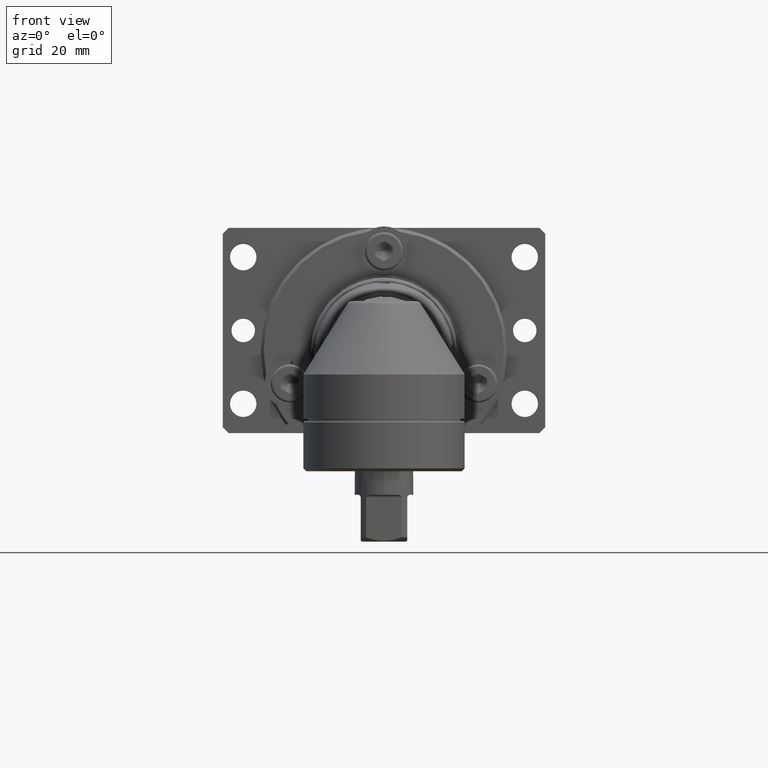
[diagram: clean part render]
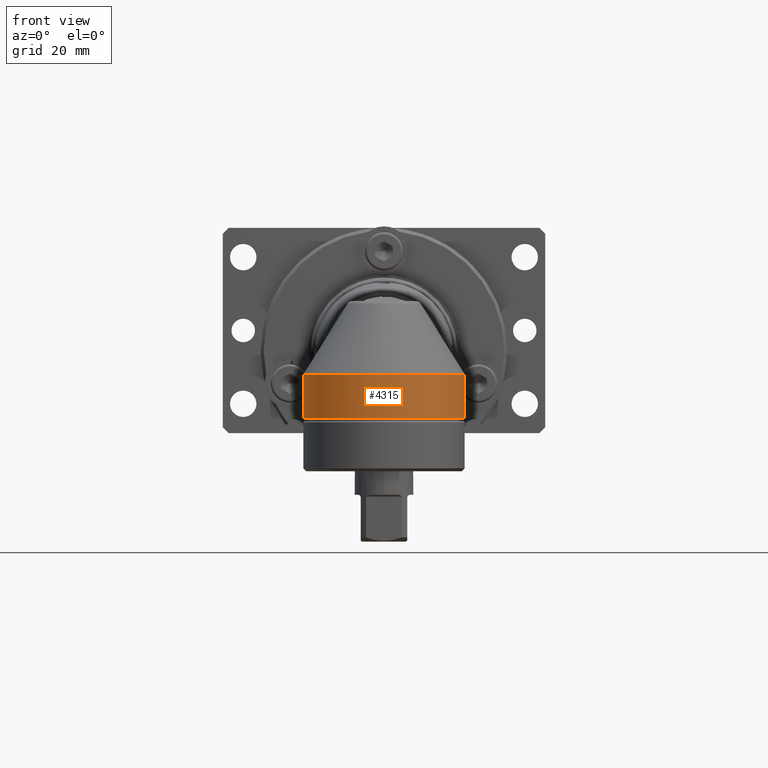
[diagram: same view with one face highlighted and labeled with its STEP entity id]
A machine part, front view. The second image highlights one B-rep face of the part: STEP entity #4315.
In plain terms, the highlighted cylindrical surface (bore or boss wall) has radius 27.5 mm, axis along (-0, 0, 1).
Its self-contained STEP definition (entity closure, byte-faithful):
#75=B_SPLINE_CURVE_WITH_KNOTS('',3,(#6843,#6844,#6845,#6846,#6847,#6848,
#6849,#6850,#6851,#6852,#6853,#6854,#6855,#6856,#6857,#6858,#6859,#6860,
#6861,#6862,#6863,#6864,#6865,#6866,#6867,#6868,#6869,#6870,#6871,#6872,
#6873,#6874,#6875,#6876,#6877,#6878,#6879,#6880,#6881,#6882,#6883,#6884,
#6885,#6886,#6887,#6888,#6889,#6890,#6891,#6892,#6893,#6894,#6895,#6896,
#6897,#6898,#6899,#6900,#6901,#6902,#6903,#6904,#6905,#6906,#6907,#6908,
#6909,#6910,#6911,#6912,#6913,#6914,#6915,#6916,#6917,#6918,#6919,#6920,
#6921,#6922,#6923,#6924,#6925,#6926,#6927,#6928,#6929,#6930,#6931,#6932,
#6933,#6934,#6935,#6936,#6937,#6938,#6939,#6940,#6941,#6942,#6943,#6944,
#6945,#6946,#6947,#6948,#6949,#6950,#6951,#6952,#6953,#6954,#6955,#6956,
#6957,#6958,#6959,#6960,#6961,#6962,#6963,#6964,#6965,#6966,#6967,#6968,
#6969),.UNSPECIFIED.,.F.,.F.,(4,3,3,3,3,3,3,3,3,3,3,3,3,3,3,3,3,3,3,3,3,
3,3,3,3,3,3,3,3,3,3,3,3,3,3,3,3,3,3,3,3,3,4),(-17.7070466256511,-17.5083488056441,
-17.3074736384562,-17.1887804634518,-17.0206010733423,-16.8240094232452,
-16.6345285269316,-16.4456815855126,-16.2596911502836,-16.2342344729538,
-16.1095041241357,-15.956338027395,-15.8073537070071,-15.6615047238209,
-15.5204249801509,-15.4550712867644,-15.2654648976194,-15.1974131817301,
-15.025334392355,-14.8613863528346,-14.741723008591,-14.5893002601389,-14.4303002306914,
-14.285862882406,-14.1153457681852,-14.0654097341612,-13.9204599866207,
-13.7699762363787,-13.6162620692377,-13.4583788014931,-13.4041479747186,
-13.3740911629389,-13.2071045468737,-13.03707144476,-12.863725955237,-12.6895672222733,
-12.5159265416098,-12.4629779472434,-12.4038385349106,-12.2233154720074,
-12.0471031034886,-11.8773444195522,-11.7763613678245),.UNSPECIFIED.);
#85=B_SPLINE_CURVE_WITH_KNOTS('',3,(#7140,#7141,#7142,#7143,#7144,#7145,
#7146,#7147),.UNSPECIFIED.,.F.,.F.,(4,2,2,4),(0.540907616312368,0.618847721981113,
0.742696162388718,0.878854937900262),.UNSPECIFIED.);
#93=B_SPLINE_CURVE_WITH_KNOTS('',3,(#7238,#7239,#7240,#7241,#7242,#7243,
#7244,#7245),.UNSPECIFIED.,.F.,.F.,(4,2,2,4),(0.,0.122759880665648,0.219472622103628,
0.258683667133576),.UNSPECIFIED.);
#185=LINE('',#7464,#394);
#394=VECTOR('',#5382,27.5);
#596=CYLINDRICAL_SURFACE('',#4643,27.5);
#760=FACE_OUTER_BOUND('',#1017,.T.);
#1017=EDGE_LOOP('',(#2993,#2994,#2995,#2996,#2997,#2998,#2999,#3000,#3001));
#1320=CIRCLE('',#4619,27.5);
#1321=CIRCLE('',#4620,27.5);
#1334=CIRCLE('',#4641,27.5);
#1335=CIRCLE('',#4642,27.5);
#1682=VERTEX_POINT('',#6813);
#1685=VERTEX_POINT('',#6834);
#1698=VERTEX_POINT('',#7139);
#1704=VERTEX_POINT('',#7237);
#1708=VERTEX_POINT('',#7420);
#1720=VERTEX_POINT('',#7459);
#1721=VERTEX_POINT('',#7460);
#2159=EDGE_CURVE('',#1685,#1682,#75,.T.);
#2176=EDGE_CURVE('',#1682,#1698,#85,.T.);
#2184=EDGE_CURVE('',#1704,#1685,#93,.T.);
#2193=EDGE_CURVE('',#1698,#1708,#1320,.T.);
#2194=EDGE_CURVE('',#1708,#1704,#1321,.T.);
#2212=EDGE_CURVE('',#1720,#1721,#1334,.T.);
#2213=EDGE_CURVE('',#1721,#1720,#1335,.T.);
#2214=EDGE_CURVE('',#1708,#1721,#185,.T.);
#2993=ORIENTED_EDGE('',*,*,#2159,.F.);
#2994=ORIENTED_EDGE('',*,*,#2184,.F.);
#2995=ORIENTED_EDGE('',*,*,#2194,.F.);
#2996=ORIENTED_EDGE('',*,*,#2214,.T.);
#2997=ORIENTED_EDGE('',*,*,#2213,.T.);
#2998=ORIENTED_EDGE('',*,*,#2212,.T.);
#2999=ORIENTED_EDGE('',*,*,#2214,.F.);
#3000=ORIENTED_EDGE('',*,*,#2193,.F.);
#3001=ORIENTED_EDGE('',*,*,#2176,.F.);
#4315=ADVANCED_FACE('',(#760),#596,.T.);
#4619=AXIS2_PLACEMENT_3D('',#7421,#5327,#5328);
#4620=AXIS2_PLACEMENT_3D('',#7422,#5329,#5330);
#4641=AXIS2_PLACEMENT_3D('',#7461,#5376,#5377);
#4642=AXIS2_PLACEMENT_3D('',#7462,#5378,#5379);
#4643=AXIS2_PLACEMENT_3D('',#7463,#5380,#5381);
#5327=DIRECTION('center_axis',(-2.51278438236415E-15,2.47358770109276E-30,
1.));
#5328=DIRECTION('ref_axis',(1.,-6.70462140602243E-16,2.51278438236415E-15));
#5329=DIRECTION('center_axis',(-2.51278438236415E-15,2.47358770109276E-30,
1.));
#5330=DIRECTION('ref_axis',(1.,-6.70462140602243E-16,2.51278438236415E-15));
#5376=DIRECTION('center_axis',(-2.51278438236415E-15,2.47358770109276E-30,
1.));
#5377=DIRECTION('ref_axis',(1.,-6.70462140602243E-16,2.51278438236415E-15));
#5378=DIRECTION('center_axis',(-2.51278438236415E-15,2.47358770109276E-30,
1.));
#5379=DIRECTION('ref_axis',(1.,-6.70462140602243E-16,2.51278438236415E-15));
#5380=DIRECTION('center_axis',(-2.51278438236415E-15,2.47358770109276E-30,
1.));
#5381=DIRECTION('ref_axis',(-1.,6.70462140602243E-16,-2.39031970244941E-15));
#5382=DIRECTION('',(2.51278438236415E-15,-2.47358770109276E-30,-1.));
#6813=CARTESIAN_POINT('',(-18.6740811436851,20.1873399297446,-6.97886737500413));
#6834=CARTESIAN_POINT('',(18.6740811436852,20.1873399297446,-6.97886737500405));
#6843=CARTESIAN_POINT('Ctrl Pts',(18.6738993673056,20.1871433585356,-6.97886732407488));
#6844=CARTESIAN_POINT('Ctrl Pts',(18.5014209593043,20.3464834740246,-7.58404983375807));
#6845=CARTESIAN_POINT('Ctrl Pts',(18.3079922814113,20.5210470190249,-8.17575001482381));
#6846=CARTESIAN_POINT('Ctrl Pts',(18.0948997176659,20.7070967063927,-8.75329315115982));
#6847=CARTESIAN_POINT('Ctrl Pts',(17.8794720679447,20.8951851416556,-9.33716505305381));
#6848=CARTESIAN_POINT('Ctrl Pts',(17.6439474324403,21.0950130551829,-9.90656799146456));
#6849=CARTESIAN_POINT('Ctrl Pts',(17.3896351246941,21.3027486792729,-10.4607647924705));
#6850=CARTESIAN_POINT('Ctrl Pts',(17.2393669971218,21.4254955629715,-10.788228753345));
#6851=CARTESIAN_POINT('Ctrl Pts',(17.0825389452229,21.5510038918792,-11.1103828922202));
#6852=CARTESIAN_POINT('Ctrl Pts',(16.9194176756991,21.678487368431,-11.4270685424822));
#6853=CARTESIAN_POINT('Ctrl Pts',(16.6882869841373,21.859121961235,-11.8757885258808));
#6854=CARTESIAN_POINT('Ctrl Pts',(16.4441958242729,22.043976737694,-12.3141581605075));
#6855=CARTESIAN_POINT('Ctrl Pts',(16.1879122149136,22.2307587837772,-12.7416463194571));
#6856=CARTESIAN_POINT('Ctrl Pts',(15.8883320010479,22.4490958262894,-13.2413544139516));
#6857=CARTESIAN_POINT('Ctrl Pts',(15.5720915205572,22.6700651611318,-13.7261926034371));
#6858=CARTESIAN_POINT('Ctrl Pts',(15.2395018917405,22.8914077791364,-14.1953214857016));
#6859=CARTESIAN_POINT('Ctrl Pts',(14.9189420869794,23.1047443965928,-14.6474818956383));
#6860=CARTESIAN_POINT('Ctrl Pts',(14.5831949378234,23.31842697133,-15.0850489301041));
#6861=CARTESIAN_POINT('Ctrl Pts',(14.2325692891678,23.5304301901844,-15.5073147832694));
#6862=CARTESIAN_POINT('Ctrl Pts',(13.8831167447695,23.7417241001803,-15.928167842271));
#6863=CARTESIAN_POINT('Ctrl Pts',(13.5188856205203,23.9513491399432,-16.3338217955149));
#6864=CARTESIAN_POINT('Ctrl Pts',(13.1402050296035,24.1573088785022,-16.7236211009536));
#6865=CARTESIAN_POINT('Ctrl Pts',(12.7672523760514,24.3601532620354,-17.1075242869189));
#6866=CARTESIAN_POINT('Ctrl Pts',(12.3802848085114,24.5594417424631,-17.4760488170435));
#6867=CARTESIAN_POINT('Ctrl Pts',(11.9796299988316,24.7532856633777,-17.8286133695242));
#6868=CARTESIAN_POINT('Ctrl Pts',(11.9247920164478,24.7798172543221,-17.8768691953648));
#6869=CARTESIAN_POINT('Ctrl Pts',(11.8696976323903,24.8062468863106,-17.9248261026772));
#6870=CARTESIAN_POINT('Ctrl Pts',(11.8143476938463,24.8325697545294,-17.972482667844));
#6871=CARTESIAN_POINT('Ctrl Pts',(11.5431490196355,24.9615441879284,-18.2059860398556));
#6872=CARTESIAN_POINT('Ctrl Pts',(11.2659551435318,25.0878899944459,-18.4319751556936));
#6873=CARTESIAN_POINT('Ctrl Pts',(10.9827743512004,25.211098784702,-18.650360873184));
#6874=CARTESIAN_POINT('Ctrl Pts',(10.6350346307204,25.3623964413389,-18.9185336815575));
#6875=CARTESIAN_POINT('Ctrl Pts',(10.2782681219194,25.5089644836691,-19.1752420652595));
#6876=CARTESIAN_POINT('Ctrl Pts',(9.91308838406619,25.6499183295533,-19.4196771788285));
#6877=CARTESIAN_POINT('Ctrl Pts',(9.5578788682451,25.7870238207943,-19.657438668146));
#6878=CARTESIAN_POINT('Ctrl Pts',(9.19470869469556,25.9188178812286,-19.8835881972567));
#6879=CARTESIAN_POINT('Ctrl Pts',(8.82411515684594,26.0444702602919,-20.0973443058206));
#6880=CARTESIAN_POINT('Ctrl Pts',(8.46132066592222,26.1674783169357,-20.3066019713435));
#6881=CARTESIAN_POINT('Ctrl Pts',(8.0914115195883,26.2846008106423,-20.5039826244833));
#6882=CARTESIAN_POINT('Ctrl Pts',(7.71487246532203,26.3950377938249,-20.6887130544377));
#6883=CARTESIAN_POINT('Ctrl Pts',(7.35064618072883,26.501863504493,-20.8674028274938));
#6884=CARTESIAN_POINT('Ctrl Pts',(6.9802160970118,26.6024340090107,-21.0342562969501));
#6885=CARTESIAN_POINT('Ctrl Pts',(6.60400881085647,26.6960014508204,-21.1885330971309));
#6886=CARTESIAN_POINT('Ctrl Pts',(6.42973477980414,26.7393455748168,-21.2600001868306));
#6887=CARTESIAN_POINT('Ctrl Pts',(6.25422087660888,26.7811865449642,-21.3287678479177));
#6888=CARTESIAN_POINT('Ctrl Pts',(6.07750892903364,26.8214479987318,-21.3947592697033));
#6889=CARTESIAN_POINT('Ctrl Pts',(5.56482613235803,26.9382559169231,-21.5862158584734));
#6890=CARTESIAN_POINT('Ctrl Pts',(5.0429009958044,27.0415765094225,-21.754632771118));
#6891=CARTESIAN_POINT('Ctrl Pts',(4.51317802595022,27.1295855761854,-21.8979892511627));
#6892=CARTESIAN_POINT('Ctrl Pts',(4.32305491244592,27.161172950609,-21.9494413910135));
#6893=CARTESIAN_POINT('Ctrl Pts',(4.13192777013606,27.1907878879291,-21.9976653041597));
#6894=CARTESIAN_POINT('Ctrl Pts',(3.93986508143168,27.2183460116886,-22.042567714563));
#6895=CARTESIAN_POINT('Ctrl Pts',(3.45420627732208,27.2880307876271,-22.1561100745354));
#6896=CARTESIAN_POINT('Ctrl Pts',(2.96256234733845,27.3445634850245,-22.2484131728501));
#6897=CARTESIAN_POINT('Ctrl Pts',(2.46730939951955,27.3879498101531,-22.3193315336054));
#6898=CARTESIAN_POINT('Ctrl Pts',(1.99545723135629,27.4292861245976,-22.3868989906641));
#6899=CARTESIAN_POINT('Ctrl Pts',(1.52032942768168,27.4586885078817,-22.4350541088026));
#6900=CARTESIAN_POINT('Ctrl Pts',(1.04401928000019,27.4761752124251,-22.4636945683793));
#6901=CARTESIAN_POINT('Ctrl Pts',(0.696367271867174,27.4889385095746,-22.4845988328258));
#6902=CARTESIAN_POINT('Ctrl Pts',(0.348086276149784,27.4953541607312,-22.4951074199627));
#6903=CARTESIAN_POINT('Ctrl Pts',(1.32385450557493E-6,27.4954365485193,
-22.4951922588058));
#6904=CARTESIAN_POINT('Ctrl Pts',(-0.443376432792995,27.495541491041,-22.4953003233909));
#6905=CARTESIAN_POINT('Ctrl Pts',(-0.887068959033633,27.4853705425256,-22.478379513719));
#6906=CARTESIAN_POINT('Ctrl Pts',(-1.32936936106625,27.4648829317254,-22.4445507745771));
#6907=CARTESIAN_POINT('Ctrl Pts',(-1.79075572013687,27.4435112483407,-22.4092622722089));
#6908=CARTESIAN_POINT('Ctrl Pts',(-2.2506265539675,27.4109140435223,-22.3555760726007));
#6909=CARTESIAN_POINT('Ctrl Pts',(-2.70709498352617,27.3670606393607,-22.2836547616394));
#6910=CARTESIAN_POINT('Ctrl Pts',(-3.12175584724136,27.327223732208,-22.2183206640511));
#6911=CARTESIAN_POINT('Ctrl Pts',(-3.5336099051889,27.2780987367766,-22.1379397175458));
#6912=CARTESIAN_POINT('Ctrl Pts',(-3.94127945464563,27.2196652557232,-22.0426401928269));
#6913=CARTESIAN_POINT('Ctrl Pts',(-4.4225582648305,27.1506809612774,-21.9301332814595));
#6914=CARTESIAN_POINT('Ctrl Pts',(-4.89800458351816,27.0687240008695,-21.796835216489));
#6915=CARTESIAN_POINT('Ctrl Pts',(-5.36661870257865,26.9751080741987,-21.6442738545452));
#6916=CARTESIAN_POINT('Ctrl Pts',(-5.5038526142623,26.9476925967506,-21.5995961728028));
#6917=CARTESIAN_POINT('Ctrl Pts',(-5.64050089264319,26.9192771320238,-21.5532663168453));
#6918=CARTESIAN_POINT('Ctrl Pts',(-5.77653912085259,26.8898943946219,-21.5053222754314));
#6919=CARTESIAN_POINT('Ctrl Pts',(-6.17141843436287,26.804604874705,-21.3661547016575));
#6920=CARTESIAN_POINT('Ctrl Pts',(-6.56055909006937,26.711296013416,-21.2130653029475));
#6921=CARTESIAN_POINT('Ctrl Pts',(-6.94348224711023,26.610809367964,-21.0468995142772));
#6922=CARTESIAN_POINT('Ctrl Pts',(-7.34102493830997,26.5064862662447,-20.8743897206053));
#6923=CARTESIAN_POINT('Ctrl Pts',(-7.73186672776648,26.3944266689725,-20.6877859440835));
#6924=CARTESIAN_POINT('Ctrl Pts',(-8.11546476390733,26.2755423958539,-20.487986697393));
#6925=CARTESIAN_POINT('Ctrl Pts',(-8.50729745379899,26.1541060480808,-20.2838983838638));
#6926=CARTESIAN_POINT('Ctrl Pts',(-8.89157251773448,26.0255485517625,-20.0660417530365));
#6927=CARTESIAN_POINT('Ctrl Pts',(-9.26769739762036,25.8908150420809,-19.8353281849122));
#6928=CARTESIAN_POINT('Ctrl Pts',(-9.65402369545603,25.7524272332088,-19.5983571058893));
#6929=CARTESIAN_POINT('Ctrl Pts',(-10.0317522816153,25.6075234705562,-19.3478219456796));
#6930=CARTESIAN_POINT('Ctrl Pts',(-10.400218417884,25.457105397968,-19.0846657682557));
#6931=CARTESIAN_POINT('Ctrl Pts',(-10.5267816914574,25.4054387675847,-18.9942750810323));
#6932=CARTESIAN_POINT('Ctrl Pts',(-10.6522519190115,25.3531213773259,-18.9023949669353));
#6933=CARTESIAN_POINT('Ctrl Pts',(-10.7766013765854,25.3001933624204,-18.8090625730331));
#6934=CARTESIAN_POINT('Ctrl Pts',(-10.8455206327264,25.2708586191294,-18.7573341675612));
#6935=CARTESIAN_POINT('Ctrl Pts',(-10.9141015676598,25.2413337506035,-18.705160257716));
#6936=CARTESIAN_POINT('Ctrl Pts',(-10.98233755221,25.2116262145331,-18.6525480489572));
#6937=CARTESIAN_POINT('Ctrl Pts',(-11.3614361817459,25.0465800693729,-18.3602504237554));
#6938=CARTESIAN_POINT('Ctrl Pts',(-11.7298857610871,24.875893632249,-18.0544211117435));
#6939=CARTESIAN_POINT('Ctrl Pts',(-12.0873613609905,24.700934467393,-17.7355348052011));
#6940=CARTESIAN_POINT('Ctrl Pts',(-12.4513587076866,24.522783366157,-17.4108307708263));
#6941=CARTESIAN_POINT('Ctrl Pts',(-12.8039777264812,24.340202774314,-17.0725890390239));
#6942=CARTESIAN_POINT('Ctrl Pts',(-13.1449017927998,24.154658803067,-16.7213522111756));
#6943=CARTESIAN_POINT('Ctrl Pts',(-13.49246734581,23.9655002796734,-16.3632729953932));
#6944=CARTESIAN_POINT('Ctrl Pts',(-13.8278775681701,23.7732624469401,-15.9916875244339));
#6945=CARTESIAN_POINT('Ctrl Pts',(-14.1508285257895,23.5795124688815,-15.607212315734));
#6946=CARTESIAN_POINT('Ctrl Pts',(-14.4752945949278,23.3848535205393,-15.2209333569487));
#6947=CARTESIAN_POINT('Ctrl Pts',(-14.7871840407195,23.1886689342984,-14.8216436375365));
#6948=CARTESIAN_POINT('Ctrl Pts',(-15.0862236028163,22.9925511772264,-14.41000763141));
#6949=CARTESIAN_POINT('Ctrl Pts',(-15.3843736422902,22.797016791734,-13.9995960771163));
#6950=CARTESIAN_POINT('Ctrl Pts',(-15.6697500379646,22.6015495628604,-13.5769118368351));
#6951=CARTESIAN_POINT('Ctrl Pts',(-15.9421186227608,22.4077199981098,-13.142648833353));
#6952=CARTESIAN_POINT('Ctrl Pts',(-16.0251725111664,22.3486151676002,-13.0102281613548));
#6953=CARTESIAN_POINT('Ctrl Pts',(-16.1070171510035,22.2896625163493,-12.876731089559));
#6954=CARTESIAN_POINT('Ctrl Pts',(-16.1876466011455,22.2309062708792,-12.7421778929045));
#6955=CARTESIAN_POINT('Ctrl Pts',(-16.2777033506244,22.1652801693827,-12.5918925628993));
#6956=CARTESIAN_POINT('Ctrl Pts',(-16.3662441171943,22.0998991080985,-12.4402896968464));
#6957=CARTESIAN_POINT('Ctrl Pts',(-16.4532355970128,22.0348631760885,-12.287396313388));
#6958=CARTESIAN_POINT('Ctrl Pts',(-16.7187770990982,21.8363409861972,-11.820689242912));
#6959=CARTESIAN_POINT('Ctrl Pts',(-16.9702149740835,21.6407872078808,-11.3412943843867));
#6960=CARTESIAN_POINT('Ctrl Pts',(-17.2066803078842,21.4509267455548,-10.8496562921339));
#6961=CARTESIAN_POINT('Ctrl Pts',(-17.4374991067208,21.2655999445549,-10.3697579827618));
#6962=CARTESIAN_POINT('Ctrl Pts',(-17.6540520457294,21.0856970246731,-9.87819389309452));
#6963=CARTESIAN_POINT('Ctrl Pts',(-17.8555002681571,20.9137700068094,-9.37534419250198));
#6964=CARTESIAN_POINT('Ctrl Pts',(-18.0495705562312,20.7481397248322,-8.89091109562051));
#6965=CARTESIAN_POINT('Ctrl Pts',(-18.2296222570186,20.589911284153,-8.39600363007436));
#6966=CARTESIAN_POINT('Ctrl Pts',(-18.3948755899935,20.441392398368,-7.8909345177755));
#6967=CARTESIAN_POINT('Ctrl Pts',(-18.4931785780057,20.353044103141,-7.59048791256718));
#6968=CARTESIAN_POINT('Ctrl Pts',(-18.5862444253752,20.2681321786109,-7.28644499426328));
#6969=CARTESIAN_POINT('Ctrl Pts',(-18.6739037781482,20.1871481254481,-6.97886732734519));
#7139=CARTESIAN_POINT('',(-20.2607566709845,18.5944007463971,-7.99894081026712));
#7140=CARTESIAN_POINT('Ctrl Pts',(-18.6740811436851,20.1873399297446,-6.97886737500413));
#7141=CARTESIAN_POINT('Ctrl Pts',(-18.759913699594,20.1079414493411,-7.13618201674838));
#7142=CARTESIAN_POINT('Ctrl Pts',(-18.8579345731809,20.0162864784775,-7.2796368605157));
#7143=CARTESIAN_POINT('Ctrl Pts',(-19.1448081435227,19.7429850396534,-7.60722289558637));
#7144=CARTESIAN_POINT('Ctrl Pts',(-19.3421297409946,19.5505062891914,-7.7530323106359));
#7145=CARTESIAN_POINT('Ctrl Pts',(-19.7856789581161,19.1019901161723,-7.95597734451269));
#7146=CARTESIAN_POINT('Ctrl Pts',(-20.0259425343208,18.8502579881271,-7.99894081035771));
#7147=CARTESIAN_POINT('Ctrl Pts',(-20.2607566709549,18.5944007464709,-7.99894081035771));
#7237=CARTESIAN_POINT('',(20.2607566714363,18.594400745271,-7.99894080888478));
#7238=CARTESIAN_POINT('Ctrl Pts',(20.2607566709549,18.5944007464709,-7.99894081035763));
#7239=CARTESIAN_POINT('Ctrl Pts',(19.9840722568112,18.8958805126675,-7.99894081035763));
#7240=CARTESIAN_POINT('Ctrl Pts',(19.7005180842649,19.1907178079722,-7.93930563876168));
#7241=CARTESIAN_POINT('Ctrl Pts',(19.2203583029868,19.6702120185141,-7.66839442421481));
#7242=CARTESIAN_POINT('Ctrl Pts',(19.0279630917103,19.8554650028986,-7.49733065439626));
#7243=CARTESIAN_POINT('Ctrl Pts',(18.7927838046219,20.0771005784276,-7.18068702144419));
#7244=CARTESIAN_POINT('Ctrl Pts',(18.730689957517,20.1349745568614,-7.08262049260862));
#7245=CARTESIAN_POINT('Ctrl Pts',(18.6740811436852,20.1873399297446,-6.97886737500405));
#7420=CARTESIAN_POINT('',(27.5,-1.50699301689065E-14,-7.9989408103576));
#7421=CARTESIAN_POINT('Origin',(2.0099613543722E-14,-1.97860816102697E-29,
-7.99894081035767));
#7422=CARTESIAN_POINT('Origin',(2.0099613543722E-14,-1.97860816102697E-29,
-7.99894081035767));
#7459=CARTESIAN_POINT('',(-27.4999999999999,1.84377088665616E-14,-23.0000000000001));
#7460=CARTESIAN_POINT('',(27.5000000000001,-1.50699301689065E-14,-22.9999999999999));
#7461=CARTESIAN_POINT('Origin',(5.77940407943754E-14,-5.68925171251336E-29,
-23.));
#7462=CARTESIAN_POINT('Origin',(5.77940407943754E-14,-5.68925171251336E-29,
-23.));
#7463=CARTESIAN_POINT('Origin',(3.89468271690487E-14,-3.83392993677017E-29,
-15.4994704051788));
#7464=CARTESIAN_POINT('',(27.5,-1.50699301689065E-14,-15.4994704051788));